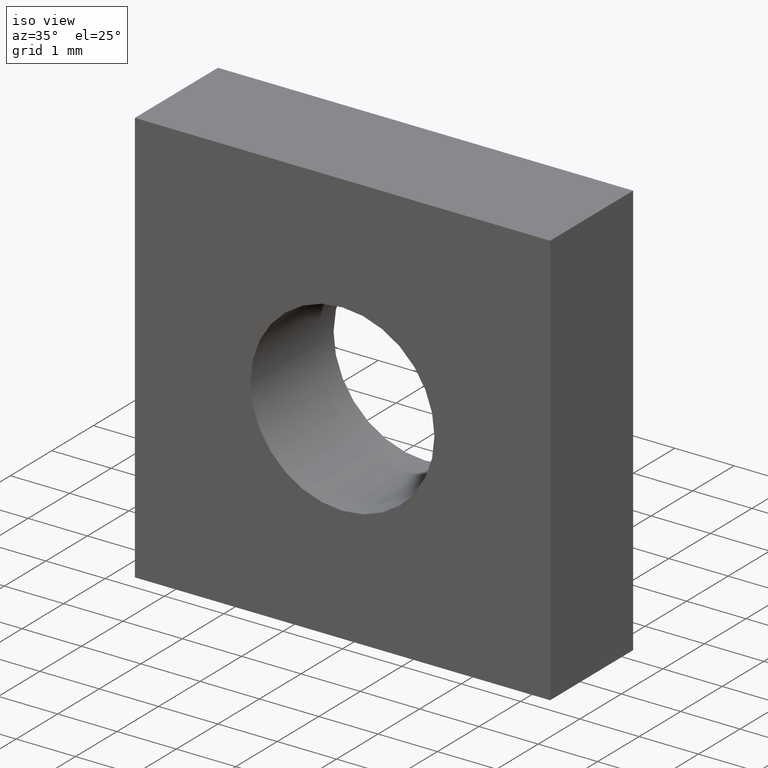
[diagram: clean part render]
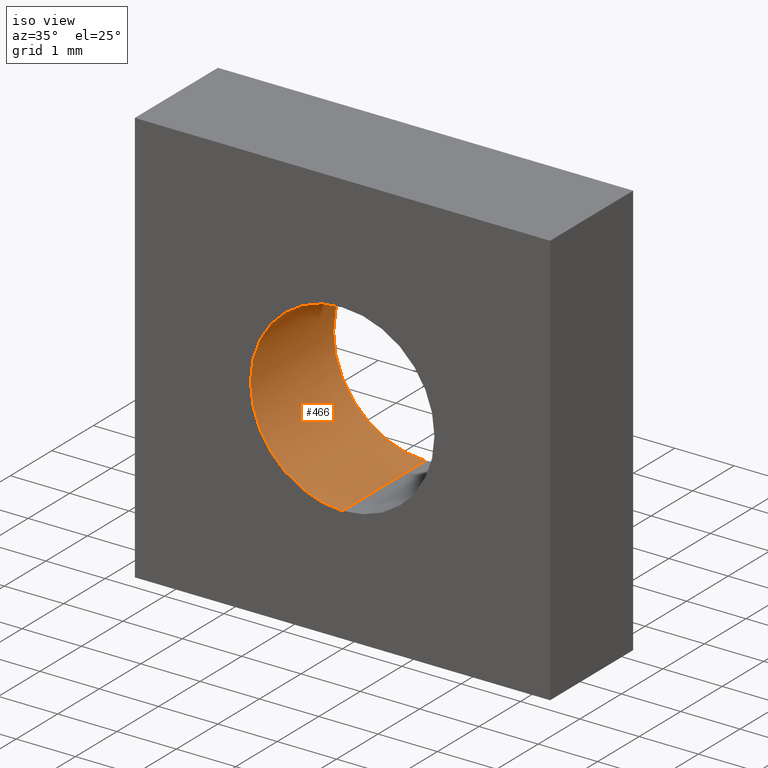
[diagram: same view with one face highlighted and labeled with its STEP entity id]
A machine part, iso view. The second image highlights one B-rep face of the part: STEP entity #466.
In plain terms, the highlighted cylindrical surface (partial cylindrical patch) has radius 1.55 mm, axis along (-0, 1, -0).
Its self-contained STEP definition (entity closure, byte-faithful):
#21 = VECTOR ( 'NONE', #46, 1000.000000000000000 ) ;
#34 = VERTEX_POINT ( 'NONE', #429 ) ;
#39 = CIRCLE ( 'NONE', #369, 1.550000000000000000 ) ;
#44 = ORIENTED_EDGE ( 'NONE', *, *, #188, .F. ) ;
#46 = DIRECTION ( 'NONE',  ( -0.0000000000000000000, 1.000000000000000000, -0.0000000000000000000 ) ) ;
#75 = FACE_OUTER_BOUND ( 'NONE', #250, .T. ) ;
#76 = DIRECTION ( 'NONE',  ( -0.0000000000000000000, 1.000000000000000000, -0.0000000000000000000 ) ) ;
#89 = VERTEX_POINT ( 'NONE', #359 ) ;
#97 = CARTESIAN_POINT ( 'NONE',  ( 0.0000000000000000000, 2.000000000000000000, 0.0000000000000000000 ) ) ;
#113 = CARTESIAN_POINT ( 'NONE',  ( 0.0000000000000000000, -7.999900000000001100, 0.0000000000000000000 ) ) ;
#121 = CARTESIAN_POINT ( 'NONE',  ( 1.898202538678397500E-016, 0.0000000000000000000, -1.550000000000000000 ) ) ;
#128 = CYLINDRICAL_SURFACE ( 'NONE', #210, 1.550000000000000000 ) ;
#130 = VERTEX_POINT ( 'NONE', #172 ) ;
#135 = ORIENTED_EDGE ( 'NONE', *, *, #212, .T. ) ;
#139 = CIRCLE ( 'NONE', #341, 1.550000000000000000 ) ;
#144 = DIRECTION ( 'NONE',  ( -0.0000000000000000000, 1.000000000000000000, 0.0000000000000000000 ) ) ;
#168 = LINE ( 'NONE', #354, #395 ) ;
#172 = CARTESIAN_POINT ( 'NONE',  ( 0.0000000000000000000, 0.0000000000000000000, 1.550000000000000000 ) ) ;
#188 = EDGE_CURVE ( 'NONE', #488, #130, #139, .T. ) ;
#195 = CARTESIAN_POINT ( 'NONE',  ( 0.0000000000000000000, -7.999900000000001100, 1.550000000000000000 ) ) ;
#202 = DIRECTION ( 'NONE',  ( 0.0000000000000000000, 0.0000000000000000000, 1.000000000000000000 ) ) ;
#210 = AXIS2_PLACEMENT_3D ( 'NONE', #113, #76, #202 ) ;
#212 = EDGE_CURVE ( 'NONE', #34, #89, #39, .T. ) ;
#227 = CARTESIAN_POINT ( 'NONE',  ( 0.0000000000000000000, 0.0000000000000000000, 0.0000000000000000000 ) ) ;
#229 = DIRECTION ( 'NONE',  ( -0.0000000000000000000, 1.000000000000000000, -0.0000000000000000000 ) ) ;
#243 = LINE ( 'NONE', #195, #21 ) ;
#250 = EDGE_LOOP ( 'NONE', ( #44, #306, #135, #437 ) ) ;
#268 = DIRECTION ( 'NONE',  ( -0.0000000000000000000, 1.000000000000000000, 0.0000000000000000000 ) ) ;
#275 = DIRECTION ( 'NONE',  ( 0.0000000000000000000, 0.0000000000000000000, 1.000000000000000000 ) ) ;
#302 = EDGE_CURVE ( 'NONE', #488, #34, #168, .T. ) ;
#306 = ORIENTED_EDGE ( 'NONE', *, *, #302, .T. ) ;
#341 = AXIS2_PLACEMENT_3D ( 'NONE', #227, #268, #436 ) ;
#354 = CARTESIAN_POINT ( 'NONE',  ( 1.898202538678397500E-016, -7.999900000000001100, -1.550000000000000000 ) ) ;
#359 = CARTESIAN_POINT ( 'NONE',  ( 0.0000000000000000000, 2.000000000000000000, 1.550000000000000000 ) ) ;
#369 = AXIS2_PLACEMENT_3D ( 'NONE', #97, #144, #275 ) ;
#395 = VECTOR ( 'NONE', #229, 1000.000000000000000 ) ;
#429 = CARTESIAN_POINT ( 'NONE',  ( 1.898202538678397500E-016, 2.000000000000000000, -1.550000000000000000 ) ) ;
#436 = DIRECTION ( 'NONE',  ( 0.0000000000000000000, 0.0000000000000000000, 1.000000000000000000 ) ) ;
#437 = ORIENTED_EDGE ( 'NONE', *, *, #485, .F. ) ;
#466 = ADVANCED_FACE ( 'NONE', ( #75 ), #128, .F. ) ;
#485 = EDGE_CURVE ( 'NONE', #130, #89, #243, .T. ) ;
#488 = VERTEX_POINT ( 'NONE', #121 ) ;